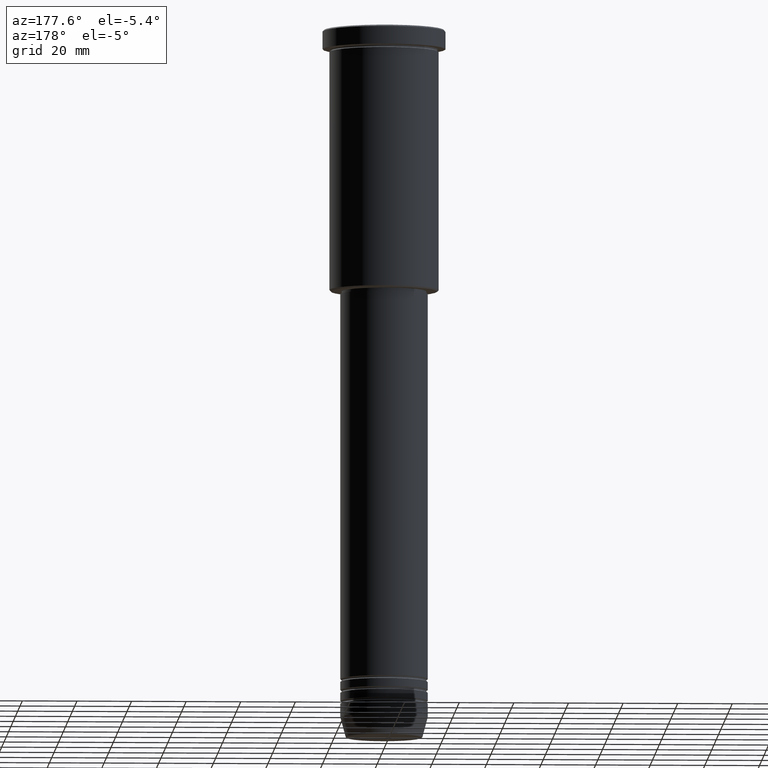
[diagram: clean part render]
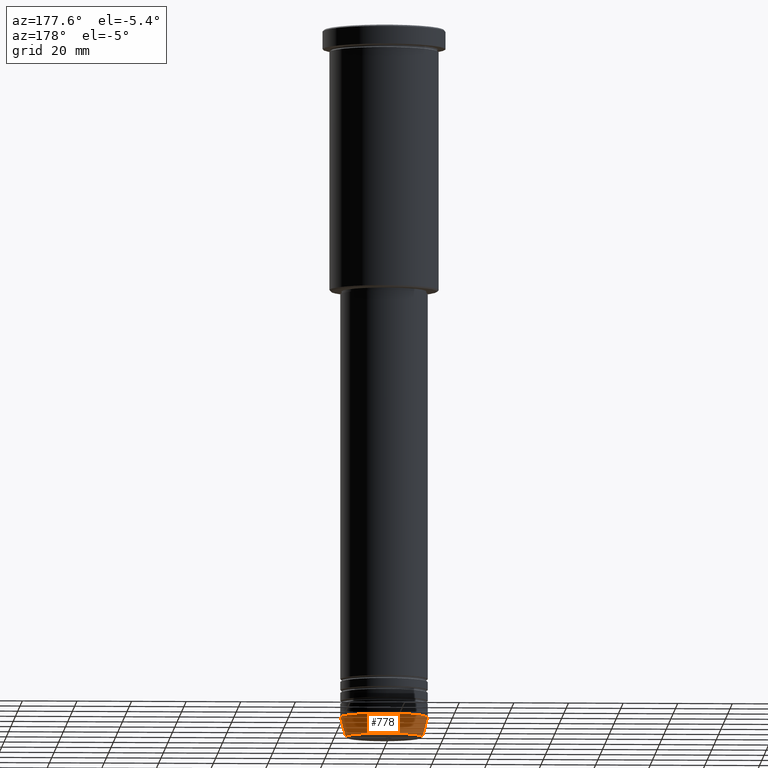
[diagram: same view with one face highlighted and labeled with its STEP entity id]
A machine part, auxiliary view. The second image highlights one B-rep face of the part: STEP entity #778.
In plain terms, the highlighted conical surface has half-angle 15 deg.
Its self-contained STEP definition (entity closure, byte-faithful):
#6 = LINE ( 'NONE', #91, #744 ) ;
#15 = CIRCLE ( 'NONE', #512, 16.00000000000000000 ) ;
#25 = ORIENTED_EDGE ( 'NONE', *, *, #1078, .T. ) ;
#58 = DIRECTION ( 'NONE',  ( -0.000000000000000000, -0.000000000000000000, 1.000000000000000000 ) ) ;
#71 = CONICAL_SURFACE ( 'NONE', #895, 16.00000000000000000, 0.2617993877991500740 ) ;
#73 = DIRECTION ( 'NONE',  ( 1.000000000000000000, 0.000000000000000000, 0.000000000000000000 ) ) ;
#91 = CARTESIAN_POINT ( 'NONE',  ( 16.00000000000000000, 0.000000000000000000, -252.5000000000000000 ) ) ;
#93 = CARTESIAN_POINT ( 'NONE',  ( 0.000000000000000000, 0.000000000000000000, -252.5000000000000000 ) ) ;
#108 = VERTEX_POINT ( 'NONE', #792 ) ;
#202 = ORIENTED_EDGE ( 'NONE', *, *, #564, .F. ) ;
#229 = CARTESIAN_POINT ( 'NONE',  ( 16.00000000000000000, 0.000000000000000000, -252.5000000000000000 ) ) ;
#269 = VERTEX_POINT ( 'NONE', #391 ) ;
#271 = DIRECTION ( 'NONE',  ( 1.000000000000000000, 0.000000000000000000, 0.000000000000000000 ) ) ;
#275 = DIRECTION ( 'NONE',  ( -0.2588190451025213501, 3.169619151431772337E-17, 0.9659258262890680902 ) ) ;
#324 = CARTESIAN_POINT ( 'NONE',  ( 0.000000000000000000, 0.000000000000000000, -259.6294095225512706 ) ) ;
#391 = CARTESIAN_POINT ( 'NONE',  ( 14.08968047592161632, 0.000000000000000000, -259.6294095225512706 ) ) ;
#402 = ORIENTED_EDGE ( 'NONE', *, *, #794, .F. ) ;
#420 = VERTEX_POINT ( 'NONE', #229 ) ;
#441 = CARTESIAN_POINT ( 'NONE',  ( 0.000000000000000000, 0.000000000000000000, -252.5000000000000000 ) ) ;
#447 = DIRECTION ( 'NONE',  ( 1.000000000000000000, 0.000000000000000000, 0.000000000000000000 ) ) ;
#457 = DIRECTION ( 'NONE',  ( -0.000000000000000000, -0.000000000000000000, 1.000000000000000000 ) ) ;
#459 = VERTEX_POINT ( 'NONE', #461 ) ;
#461 = CARTESIAN_POINT ( 'NONE',  ( -16.00000000000000000, 1.959434878635765131E-15, -252.5000000000000000 ) ) ;
#512 = AXIS2_PLACEMENT_3D ( 'NONE', #93, #457, #271 ) ;
#564 = EDGE_CURVE ( 'NONE', #420, #459, #15, .T. ) ;
#578 = VECTOR ( 'NONE', #275, 1000.000000000000000 ) ;
#613 = EDGE_LOOP ( 'NONE', ( #25, #722, #202, #402 ) ) ;
#722 = ORIENTED_EDGE ( 'NONE', *, *, #1181, .T. ) ;
#741 = CARTESIAN_POINT ( 'NONE',  ( -16.00000000000000000, 1.959434878635765131E-15, -252.5000000000000000 ) ) ;
#743 = DIRECTION ( 'NONE',  ( 0.2588190451025213501, 0.000000000000000000, 0.9659258262890680902 ) ) ;
#744 = VECTOR ( 'NONE', #743, 1000.000000000000000 ) ;
#778 = ADVANCED_FACE ( 'NONE', ( #1024 ), #71, .T. ) ;
#792 = CARTESIAN_POINT ( 'NONE',  ( -14.08968047592161632, 1.842461544110200874E-15, -259.6294095225512706 ) ) ;
#794 = EDGE_CURVE ( 'NONE', #269, #420, #6, .T. ) ;
#861 = AXIS2_PLACEMENT_3D ( 'NONE', #324, #58, #73 ) ;
#895 = AXIS2_PLACEMENT_3D ( 'NONE', #441, #1008, #447 ) ;
#913 = CIRCLE ( 'NONE', #861, 14.08968047592161632 ) ;
#1008 = DIRECTION ( 'NONE',  ( -0.000000000000000000, -0.000000000000000000, 1.000000000000000000 ) ) ;
#1024 = FACE_OUTER_BOUND ( 'NONE', #613, .T. ) ;
#1078 = EDGE_CURVE ( 'NONE', #269, #108, #913, .T. ) ;
#1107 = LINE ( 'NONE', #741, #578 ) ;
#1181 = EDGE_CURVE ( 'NONE', #108, #459, #1107, .T. ) ;